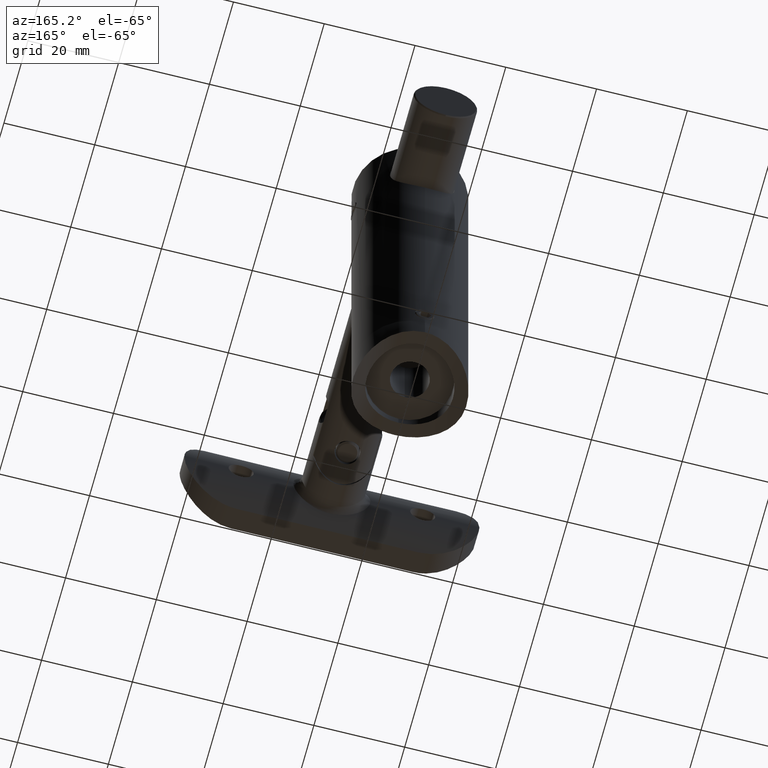
[diagram: clean part render]
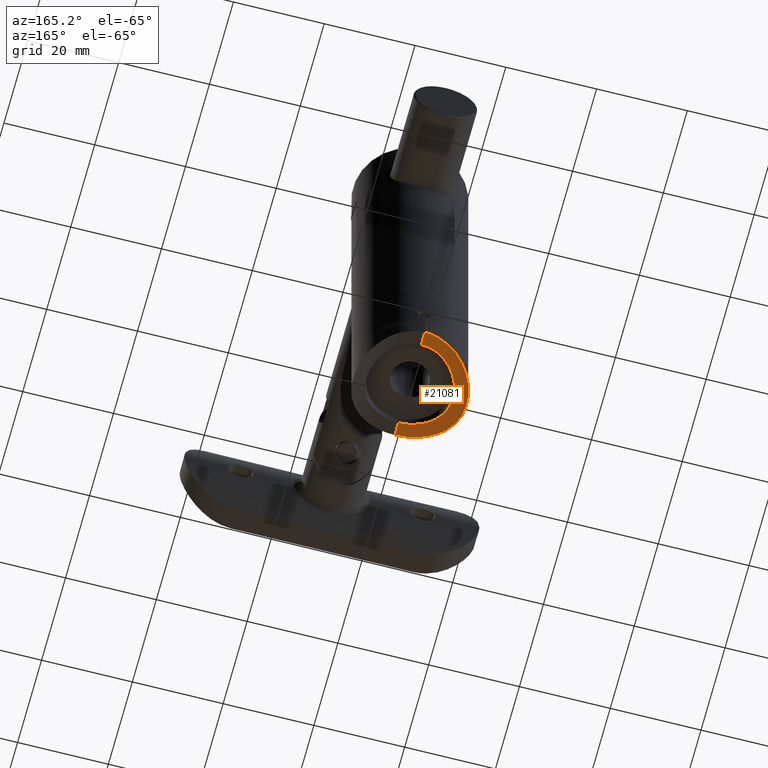
[diagram: same view with one face highlighted and labeled with its STEP entity id]
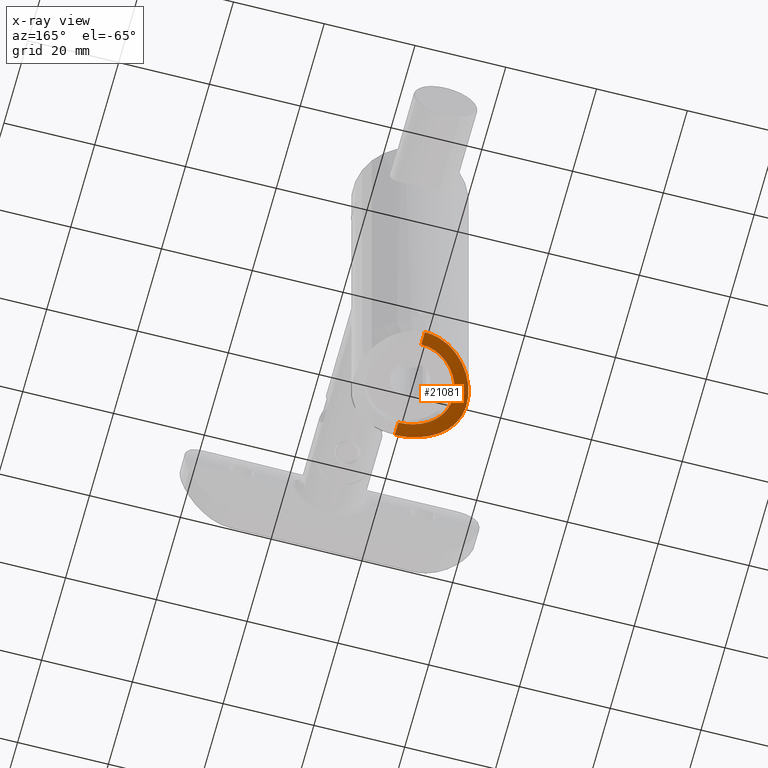
[diagram: x-ray of the same camera — body ghosted, the highlighted face saturated]
A machine part, auxiliary view. The second image highlights one B-rep face of the part: STEP entity #21081.
The next image is the same camera in x-ray: the body ghosted, the highlighted face saturated — about 0% of this face is hidden behind the body in this view.
In plain terms, the highlighted cylindrical surface (partial cylindrical patch) has radius 21.2 mm, axis along (0, 1, 0).
Its self-contained STEP definition (entity closure, byte-faithful):
#172 = CARTESIAN_POINT ( 'NONE',  ( 1.770460806215789106E-16, 9.500000000000001776, 9.112057225737407952E-16 ) ) ;
#442 = CARTESIAN_POINT ( 'NONE',  ( -6.341786811947642377, 10.80157710299961416, -0.9585494183447915706 ) ) ;
#583 = CARTESIAN_POINT ( 'NONE',  ( -12.47743914675955601, -0.8590761027902552582, -4.060680339665352356 ) ) ;
#649 = CARTESIAN_POINT ( 'NONE',  ( -11.82258794161551663, 4.080128214362264139, -3.602040162122799760 ) ) ;
#940 = VECTOR ( 'NONE', #6188, 1000.000000000000000 ) ;
#1156 = CARTESIAN_POINT ( 'NONE',  ( -8.235752470672204950, 4.775466803360538748, -1.661573785682639359 ) ) ;
#1299 = CARTESIAN_POINT ( 'NONE',  ( -8.885425388850347161, -3.375939349696126968, -1.951447900119088308 ) ) ;
#1367 = CARTESIAN_POINT ( 'NONE',  ( -6.280760494941165284, 7.134194005076480494, -0.9502247925052504929 ) ) ;
#1436 = CARTESIAN_POINT ( 'NONE',  ( -4.226779786594405230, -8.513534685781525724, -0.4237573025697753404 ) ) ;
#1864 = EDGE_CURVE ( 'NONE', #19331, #5452, #7823, .T. ) ;
#2034 = CARTESIAN_POINT ( 'NONE',  ( -9.131153934576975217, -8.545773481795482240, -2.064755425040014636 ) ) ;
#2173 = CARTESIAN_POINT ( 'NONE',  ( -11.19951824176104083, -5.610365273027632327, -3.195789650799769621 ) ) ;
#2318 = CARTESIAN_POINT ( 'NONE',  ( -11.36768113948518710, 5.214514510065643371, -3.304441698743988631 ) ) ;
#2394 = CARTESIAN_POINT ( 'NONE',  ( -3.314268895872201970, 12.05973822206781776, -0.2568123239795907509 ) ) ;
#2766 = CARTESIAN_POINT ( 'NONE',  ( -0.6368419236036475528, 9.500000000000003553, -9.035018104045837414E-18 ) ) ;
#2825 = EDGE_CURVE ( 'NONE', #17354, #5452, #3462, .T. ) ;
#2832 = ORIENTED_EDGE ( 'NONE', *, *, #1864, .T. ) ;
#2837 = CARTESIAN_POINT ( 'NONE',  ( -9.375005727375357978, -1.567523863535455364, -2.185426971021215081 ) ) ;
#2902 = CARTESIAN_POINT ( 'NONE',  ( -4.772371283661581032, -8.220122416439462398, -0.5422556817602156576 ) ) ;
#2962 = CARTESIAN_POINT ( 'NONE',  ( -8.883793084307814780, 3.379868607191755192, -1.950705888128362098 ) ) ;
#3039 = CARTESIAN_POINT ( 'NONE',  ( -7.545282423623953960, -5.804909621740315551, -1.384726415098398444 ) ) ;
#3462 = LINE ( 'NONE', #6360, #11088 ) ;
#3765 = CARTESIAN_POINT ( 'NONE',  ( -11.81299108572395085, -4.107946293886024058, -3.595584469514719217 ) ) ;
#3837 = CARTESIAN_POINT ( 'NONE',  ( -5.615852831644746246, -11.19741679516262423, -0.7426697937745319056 ) ) ;
#3906 = CARTESIAN_POINT ( 'NONE',  ( -2.897069353050999663, -12.16672379034243434, -0.1948899815732027807 ) ) ;
#3977 = CARTESIAN_POINT ( 'NONE',  ( -4.096177303198109243, -11.81715717646936348, -0.3955541790620944465 ) ) ;
#4046 = CARTESIAN_POINT ( 'NONE',  ( -4.497906677117297747, 11.66996163373025475, -0.4789896541132539487 ) ) ;
#4131 = CARTESIAN_POINT ( 'NONE',  ( -1.261473221818074864, 9.436624146820390635, -0.02861351620139697058 ) ) ;
#4480 = CARTESIAN_POINT ( 'NONE',  ( -8.523632320392785289, -4.241308218152470388, -1.787172766508722921 ) ) ;
#4521 = FACE_OUTER_BOUND ( 'NONE', #13157, .T. ) ;
#4549 = CARTESIAN_POINT ( 'NONE',  ( -3.092007429817300590, -9.003988134695672940, -0.2186989969454679050 ) ) ;
#4619 = CARTESIAN_POINT ( 'NONE',  ( -9.437129086660840827, 1.258615215747740157, -2.215807588905757797 ) ) ;
#4679 = CARTESIAN_POINT ( 'NONE',  ( -6.939045779169092043, 6.495616438853671681, -1.166491256657042230 ) ) ;
#5316 = CARTESIAN_POINT ( 'NONE',  ( -11.19286692429163033, 5.579736034962381019, -3.194160573709634576 ) ) ;
#5452 = VERTEX_POINT ( 'NONE', #13165 ) ;
#5459 = CARTESIAN_POINT ( 'NONE',  ( -8.275085783090281311, -9.377256695960115351, -1.678894091352528761 ) ) ;
#5518 = CARTESIAN_POINT ( 'NONE',  ( -12.16283172011047320, -2.913318855141282526, -3.835786719495810626 ) ) ;
#5592 = CARTESIAN_POINT ( 'NONE',  ( -10.80857782698150871, 6.291928922265645596, -2.960889035143795756 ) ) ;
#5678 = CARTESIAN_POINT ( 'NONE',  ( 1.530808498934191521E-15, -12.50000000000000000, 0.000000000000000000 ) ) ;
#6115 = CARTESIAN_POINT ( 'NONE',  ( -4.786314100962477447, 8.229443216956003226, -0.5405650586950728753 ) ) ;
#6180 = CARTESIAN_POINT ( 'NONE',  ( -9.500231082921484216, -0.3076637705127349132, -2.247807265663634091 ) ) ;
#6188 = DIRECTION ( 'NONE',  ( -0.000000000000000000, 1.000000000000000000, -0.000000000000000000 ) ) ;
#6310 = CARTESIAN_POINT ( 'NONE',  ( -2.484891172450712116, 9.174654780029433354, -0.1439469597393304989 ) ) ;
#6360 = CARTESIAN_POINT ( 'NONE',  ( 0.000000000000000000, -12.50000000000000000, 0.000000000000000000 ) ) ;
#6369 = EDGE_CURVE ( 'NONE', #17354, #17704, #15171, .T. ) ;
#6380 = CARTESIAN_POINT ( 'NONE',  ( -3.947781125793090595, -8.646421355206925341, -0.3687998517959273359 ) ) ;
#6949 = CARTESIAN_POINT ( 'NONE',  ( -9.926636468171466277, 7.639131853456515131, -2.460587857928711042 ) ) ;
#7013 = CARTESIAN_POINT ( 'NONE',  ( -6.327442067174430917, -10.81070993117193524, -0.9537559661941119593 ) ) ;
#7156 = CARTESIAN_POINT ( 'NONE',  ( -9.398677270982499721, -8.250758313400194055, -2.195094919896831698 ) ) ;
#7233 = CARTESIAN_POINT ( 'NONE',  ( 0.000000000000000000, 12.50000000000000000, -5.261240927112904875E-16 ) ) ;
#7732 = CARTESIAN_POINT ( 'NONE',  ( -8.989604679587658964, 3.087914901680314461, -2.000068494703273192 ) ) ;
#7802 = CARTESIAN_POINT ( 'NONE',  ( -8.230780964947197020, -4.783566376239048346, -1.659513854465886729 ) ) ;
#7823 = B_SPLINE_CURVE_WITH_KNOTS ( 'NONE', 3,
 ( #16731, #20063, #13558, #3906, #16879, #3977, #13629, #3837, #7013, #15239, #16664, #5459, #11923, #2034, #7156, #13420, #13490, #12001, #2173, #18490, #3765, #8779, #5518, #10361, #15314, #583, #18354, #13695, #16803, #10431, #15029, #649, #12071, #2318, #5316, #5592, #19859, #6949, #18214, #18285, #8575, #19925, #10224, #442, #11848, #4046, #20280, #2394, #18638, #8930, #20203, #10568, #16944, #7233 ),
 .UNSPECIFIED., .F., .F.,
 ( 4, 2, 2, 2, 2, 2, 2, 2, 2, 2, 2, 2, 2, 2, 2, 2, 2, 2, 2, 2, 2, 2, 2, 2, 2, 2, 4 ),
 ( 1.489330742102178506E-18, 0.002502676506719043580, 0.003754014760078563419, 0.005005353013438084558, 0.007508029520157129440, 0.008759367773516652314, 0.01001070602687617432, 0.01126204428023569633, 0.01251338253359522007, 0.01501605904031426235, 0.01626739729367378262, 0.01751873554703330463, 0.01877007380039282664, 0.02002141205375234517, 0.02252408856047138572, 0.02377542681383090772, 0.02502676506719042973, 0.02627810332054994827, 0.02752944157390947028, 0.03003211808062851082, 0.03128345633398803977, 0.03253479458734756524, 0.03503747109406661620, 0.03628880934742614167, 0.03754014760078566715, 0.03879148585414519262, 0.04004282410750471810 ),
 .UNSPECIFIED. ) ;
#7870 = CARTESIAN_POINT ( 'NONE',  ( -8.992179249281038622, -3.080281073122243640, -2.001277538550943369 ) ) ;
#7939 = CARTESIAN_POINT ( 'NONE',  ( -2.495506358213163800, -9.188284264477221797, -0.1381395407101492501 ) ) ;
#8347 = CARTESIAN_POINT ( 'NONE',  ( 0.000000000000000000, -12.50000000000000000, -21.19999999999999929 ) ) ;
#8575 = CARTESIAN_POINT ( 'NONE',  ( -8.277917003856288147, 9.374850157636908321, -1.680064173656778292 ) ) ;
#8779 = CARTESIAN_POINT ( 'NONE',  ( -12.05928981790097154, -3.315947863389198336, -3.763379523277602168 ) ) ;
#8930 = CARTESIAN_POINT ( 'NONE',  ( -2.099149467039293615, 12.32948117877257665, -0.1002009966568856714 ) ) ;
#9287 = DIRECTION ( 'NONE',  ( -0.000000000000000000, 1.000000000000000000, -0.000000000000000000 ) ) ;
#9303 = CARTESIAN_POINT ( 'NONE',  ( -9.499529976441312584, 0.6364909465714438941, -2.247455830415495903 ) ) ;
#9377 = CARTESIAN_POINT ( 'NONE',  ( -7.144392992319526847, 6.269113372122063765, -1.239018852474774501 ) ) ;
#9447 = CARTESIAN_POINT ( 'NONE',  ( -5.810916388656584886, -7.540969755756174564, -0.8050318756413947785 ) ) ;
#9515 = CARTESIAN_POINT ( 'NONE',  ( -9.421843170412577351, -1.256671943239963785, -2.208683526330691205 ) ) ;
#9581 = CARTESIAN_POINT ( 'NONE',  ( -3.086437162363791398, 8.990154621274323077, -0.2236809850733390004 ) ) ;
#10007 = ORIENTED_EDGE ( 'NONE', *, *, #2825, .F. ) ;
#10224 = CARTESIAN_POINT ( 'NONE',  ( -7.337423735946506653, 10.12782281091194925, -1.307140519180897575 ) ) ;
#10361 = CARTESIAN_POINT ( 'NONE',  ( -12.32914928014637646, -2.100947460388592702, -3.953479877655620367 ) ) ;
#10431 = CARTESIAN_POINT ( 'NONE',  ( -12.16984790407604500, 2.883996753870301966, -3.840709158031511805 ) ) ;
#10568 = CARTESIAN_POINT ( 'NONE',  ( -0.8493063021244290356, 12.47821017736088223, -0.01286860730927284584 ) ) ;
#10935 = CARTESIAN_POINT ( 'NONE',  ( -2.181203834842527556, 9.251494329312301090, -0.1102612648994177463 ) ) ;
#11088 = VECTOR ( 'NONE', #9287, 1000.000000000000000 ) ;
#11144 = CARTESIAN_POINT ( 'NONE',  ( -5.040347690445461382, -8.058575475399974763, -0.6061838486206878596 ) ) ;
#11212 = CARTESIAN_POINT ( 'NONE',  ( -4.243471572411714909, 8.522322682012855921, -0.4208661121321867205 ) ) ;
#11848 = CARTESIAN_POINT ( 'NONE',  ( -5.634036949567863495, 11.18857916297123722, -0.7475340222135644641 ) ) ;
#11923 = CARTESIAN_POINT ( 'NONE',  ( -8.569357823279590392, -9.109024265841890511, -1.806659297143438980 ) ) ;
#12001 = CARTESIAN_POINT ( 'NONE',  ( -10.81845405890102718, -6.312809980033596169, -2.960938029448110242 ) ) ;
#12071 = CARTESIAN_POINT ( 'NONE',  ( -11.68253881569349950, 4.464708600178406428, -3.508378586956059308 ) ) ;
#12578 = CARTESIAN_POINT ( 'NONE',  ( -5.805942213954453202, 7.525670169832348932, -0.8090122025169094178 ) ) ;
#12646 = CARTESIAN_POINT ( 'NONE',  ( -7.719098825323018609, 5.546277022647022825, -1.454369021286667563 ) ) ;
#12715 = CARTESIAN_POINT ( 'NONE',  ( -3.382720858059251601, 8.882790007481048633, -0.2695899795201894267 ) ) ;
#12783 = CARTESIAN_POINT ( 'NONE',  ( -8.526553804341489240, 4.234270384419533961, -1.788500992911558285 ) ) ;
#13146 = CYLINDRICAL_SURFACE ( 'NONE', #19410, 21.19999999999999929 ) ;
#13157 = EDGE_LOOP ( 'NONE', ( #20950, #2832, #10007, #14994 ) ) ;
#13165 = CARTESIAN_POINT ( 'NONE',  ( 0.000000000000000000, 12.50000000000000000, -5.261240927112904875E-16 ) ) ;
#13420 = CARTESIAN_POINT ( 'NONE',  ( -9.907181247822165915, -7.632686742754887455, -2.455152407378312418 ) ) ;
#13490 = CARTESIAN_POINT ( 'NONE',  ( -10.14840342747128865, -7.308901243718507246, -2.585073453788890863 ) ) ;
#13558 = CARTESIAN_POINT ( 'NONE',  ( -1.677193835120720955, -12.41473863385456156, -0.05058743771265820921 ) ) ;
#13629 = CARTESIAN_POINT ( 'NONE',  ( -4.484770986791658309, -11.67494392594038821, -0.4761762759779034071 ) ) ;
#13695 = CARTESIAN_POINT ( 'NONE',  ( -12.50092163456458394, 0.8325225752573188753, -4.077880983653366265 ) ) ;
#14207 = CARTESIAN_POINT ( 'NONE',  ( -9.251571903857151113, -2.180889900667828840, -2.125065211895238004 ) ) ;
#14273 = CARTESIAN_POINT ( 'NONE',  ( -0.6275294939466145028, -9.500000000000001776, 8.597384414631142525E-16 ) ) ;
#14341 = CARTESIAN_POINT ( 'NONE',  ( -9.173567599588995591, 2.488748326178157555, -2.087281208600356042 ) ) ;
#14736 = DIRECTION ( 'NONE',  ( -0.000000000000000000, 1.000000000000000000, -0.000000000000000000 ) ) ;
#14994 = ORIENTED_EDGE ( 'NONE', *, *, #6369, .T. ) ;
#15029 = CARTESIAN_POINT ( 'NONE',  ( -12.06641939663192531, 3.289765162964161327, -3.768324835594354383 ) ) ;
#15171 = B_SPLINE_CURVE_WITH_KNOTS ( 'NONE', 3,
 ( #18793, #2766, #4131, #10935, #6310, #9581, #12715, #11212, #6115, #17659, #12578, #1367, #19144, #4679, #9377, #20914, #12646, #1156, #12783, #2962, #7732, #14341, #20850, #4619, #9303, #6180, #17588, #9515, #2837, #14207, #17517, #7870, #1299, #4480, #7802, #3039, #20779, #19206, #9447, #11144, #2902, #1436, #6380, #4549, #7939, #15836, #14273, #15903 ),
 .UNSPECIFIED., .F., .F.,
 ( 4, 2, 2, 2, 2, 2, 2, 2, 2, 2, 2, 2, 2, 2, 2, 2, 2, 2, 2, 2, 2, 2, 2, 4 ),
 ( 2.347299112868954936E-19, 0.001881730389045195660, 0.002822595583567794140, 0.003763460778090392620, 0.005645191167135589147, 0.006586056361658188495, 0.007526921556180787842, 0.008467786750703388057, 0.009408651945225986538, 0.01129038233427118870, 0.01223124752879379065, 0.01317211272331639087, 0.01505384311236159303, 0.01599470830688419151, 0.01693557350140679346, 0.01787643869592939541, 0.01881730389045199736, 0.02069903427949719432, 0.02258076466854239128, 0.02446249505758758477, 0.02540336025211018325, 0.02634422544663278173, 0.02822595583567798216, 0.03010768622472317912 ),
 .UNSPECIFIED. ) ;
#15239 = CARTESIAN_POINT ( 'NONE',  ( -7.335528771759535438, -10.12938846727852571, -1.306364138595595970 ) ) ;
#15314 = CARTESIAN_POINT ( 'NONE',  ( -12.39224670344945167, -1.690183733302201619, -3.998982945155021174 ) ) ;
#15836 = CARTESIAN_POINT ( 'NONE',  ( -1.252164291796421969, -9.438442895683170519, -0.02781063336081027182 ) ) ;
#15903 = CARTESIAN_POINT ( 'NONE',  ( 1.163408702497735518E-15, -9.500000000000001776, 5.232710601427350400E-16 ) ) ;
#15908 = CARTESIAN_POINT ( 'NONE',  ( 0.000000000000000000, -12.50000000000000000, 0.000000000000000000 ) ) ;
#16664 = CARTESIAN_POINT ( 'NONE',  ( -7.658649217430768097, -9.887116871149991937, -1.428917258316853012 ) ) ;
#16731 = CARTESIAN_POINT ( 'NONE',  ( 1.530808498934191521E-15, -12.50000000000000000, 0.000000000000000000 ) ) ;
#16803 = CARTESIAN_POINT ( 'NONE',  ( -12.41682490114521720, 1.662227575578486993, -4.015612738538502313 ) ) ;
#16879 = CARTESIAN_POINT ( 'NONE',  ( -3.299544761782136071, -12.06386656912337862, -0.2544362983334328976 ) ) ;
#16944 = CARTESIAN_POINT ( 'NONE',  ( -0.4242796211472562584, 12.49999999999999467, -5.563124168022411105E-16 ) ) ;
#17354 = VERTEX_POINT ( 'NONE', #172 ) ;
#17517 = CARTESIAN_POINT ( 'NONE',  ( -9.174972866799736337, -2.483403316846499287, -2.087959169768458967 ) ) ;
#17588 = CARTESIAN_POINT ( 'NONE',  ( -9.484629787162836223, -0.6262195311870186742, -2.239962343619228857 ) ) ;
#17659 = CARTESIAN_POINT ( 'NONE',  ( -5.556285168680514808, 7.711895338232023889, -0.7393558552993830801 ) ) ;
#17704 = VERTEX_POINT ( 'NONE', #20573 ) ;
#18199 = DIRECTION ( 'NONE',  ( 0.000000000000000000, 0.000000000000000000, 1.000000000000000000 ) ) ;
#18214 = CARTESIAN_POINT ( 'NONE',  ( -9.421823641441761765, 8.253338742496669767, -2.198572594055990148 ) ) ;
#18285 = CARTESIAN_POINT ( 'NONE',  ( -8.576233453199913370, 9.102626546136093566, -1.809681003019512291 ) ) ;
#18354 = CARTESIAN_POINT ( 'NONE',  ( -12.49952788043968255, -0.4368485482069772163, -4.076863514619260442 ) ) ;
#18490 = CARTESIAN_POINT ( 'NONE',  ( -11.67210911516328764, -4.491739155361245572, -3.501495300727554216 ) ) ;
#18638 = CARTESIAN_POINT ( 'NONE',  ( -2.913028033381145132, 12.16292737376221034, -0.1970903410221276075 ) ) ;
#18793 = CARTESIAN_POINT ( 'NONE',  ( 1.770460806215789106E-16, 9.500000000000001776, 9.112057225737407952E-16 ) ) ;
#19144 = CARTESIAN_POINT ( 'NONE',  ( -6.507229071006188192, 6.928156974517996503, -1.022096275567794699 ) ) ;
#19206 = CARTESIAN_POINT ( 'NONE',  ( -6.282985172252443462, -7.151845603656004968, -0.9472842243421513153 ) ) ;
#19331 = VERTEX_POINT ( 'NONE', #5678 ) ;
#19410 = AXIS2_PLACEMENT_3D ( 'NONE', #8347, #14736, #18199 ) ;
#19563 = EDGE_CURVE ( 'NONE', #19331, #17704, #20005, .T. ) ;
#19859 = CARTESIAN_POINT ( 'NONE',  ( -10.59835307524083170, 6.639730706434162855, -2.837515640770625680 ) ) ;
#19925 = CARTESIAN_POINT ( 'NONE',  ( -7.658205628427092293, 9.887548328762060024, -1.428715490893913032 ) ) ;
#20005 = LINE ( 'NONE', #15908, #940 ) ;
#20063 = CARTESIAN_POINT ( 'NONE',  ( -0.8474616539393305947, -12.50000000000000355, -0.000000000000000000 ) ) ;
#20203 = CARTESIAN_POINT ( 'NONE',  ( -1.686513140915326225, 12.39284970661473650, -0.06302927873795100000 ) ) ;
#20280 = CARTESIAN_POINT ( 'NONE',  ( -4.105579123586816870, 11.81380058909568298, -0.3974590877189427274 ) ) ;
#20573 = CARTESIAN_POINT ( 'NONE',  ( 1.163408702497735518E-15, -9.500000000000001776, 5.232710601427350400E-16 ) ) ;
#20779 = CARTESIAN_POINT ( 'NONE',  ( -7.148975235186329158, -6.286250973352113469, -1.236519540645801163 ) ) ;
#20850 = CARTESIAN_POINT ( 'NONE',  ( -9.251550618719285524, 2.181098476497070227, -2.125054315301133645 ) ) ;
#20914 = CARTESIAN_POINT ( 'NONE',  ( -7.534017711420826657, 5.795059173573754663, -1.382792913113130906 ) ) ;
#20950 = ORIENTED_EDGE ( 'NONE', *, *, #19563, .F. ) ;
#21081 = ADVANCED_FACE ( 'NONE', ( #4521 ), #13146, .F. ) ;